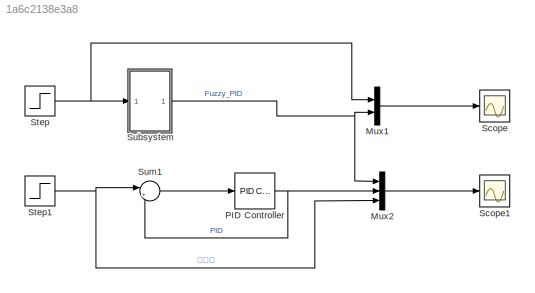
MODEL slx_1a6c2138e3a8
KIND model
CONFIG AbsTol = auto
CONFIG EnableMultiTasking = off
CONFIG FixedStep = auto
CONFIG MaxStep = auto
CONFIG MinStep = auto
CONFIG RelTol = 1e-3
CONFIG SampleTimeConstraint = Unconstrained
CONFIG Solver = VariableStepAuto
CONFIG SolverName = VariableStepAuto
CONFIG StartTime = 0.0
CONFIG StopTime = 1000
BLOCK [Mux] Mux1
  DisplayOption = bar
  Inputs = 2
  Ports = [2, 1]
BLOCK [Mux] Mux2
  DisplayOption = bar
  Inputs = 3
  Ports = [3, 1]
BLOCK [Reference] PID Controller  REF=simulink/Continuous/PID Controller
  Ports = [1, 1]
  SourceBlock = simulink/Continuous/PID Controller
  SourceProductBaseCode = SL
  SourceProductName = Simulink
  SourceType = PID 1dof
BLOCK [Scope] Scope
  Floating = off
  NumInputPorts = 1
  Ports = [1]
  ScopeSpecificationString = Simulink.scopes.TimeScopeBlockCfg('CurrentConfiguration', extmgr.ConfigurationSet(extmgr.Configuration('Core','General UI',true),extmgr.Configuration('Core','Source UI',true),extmgr.Configuration('Sources','WiredSimulink',true),extmgr.Configuration('Visuals','Time Domain',true,'SerializedDisplays',{struct('MinYLimReal','-137.5','MaxYLimReal','137.5','YLabelReal','','MinYLimMag',' 0.00000','MaxYLim...<+1365ch>
BLOCK [Scope] Scope1
  Floating = off
  NumInputPorts = 1
  Ports = [1]
  ScopeSpecificationString = Simulink.scopes.TimeScopeBlockCfg('CurrentConfiguration', extmgr.ConfigurationSet(extmgr.Configuration('Core','General UI',true),extmgr.Configuration('Core','Source UI',true),extmgr.Configuration('Sources','WiredSimulink',true,'DataLoggingVariableName','ScopeData1'),extmgr.Configuration('Visuals','Time Domain',true,'SerializedDisplays',{struct('MinYLimReal','-10.14515','MaxYLimReal','123.34946','Y...<+1434ch>
BLOCK [Step] Step
  After = 110
  SampleTime = 0
  Time = 0
BLOCK [Step] Step1
  After = 110
  SampleTime = 0
  Time = 0
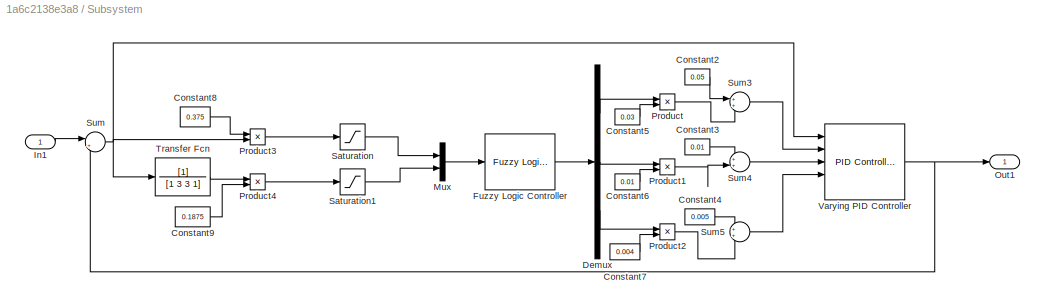
BLOCK [SubSystem] Subsystem
  Ports = [1, 1]
  RequestExecContextInheritance = off
BLOCK [Constant] Subsystem/Constant2
  Value = 0.05
BLOCK [Constant] Subsystem/Constant3
  Value = 0.01
BLOCK [Constant] Subsystem/Constant4
  Value = 0.005
BLOCK [Constant] Subsystem/Constant5
  Value = 0.03
BLOCK [Constant] Subsystem/Constant6
  Value = 0.01
BLOCK [Constant] Subsystem/Constant7
  Value = 0.004
BLOCK [Constant] Subsystem/Constant8
  Value = 0.375
BLOCK [Constant] Subsystem/Constant9
  Value = 0.1875
BLOCK [Demux] Subsystem/Demux
  DisplayOption = bar
  Outputs = 3
  Ports = [1, 3]
BLOCK [Reference] Subsystem/Fuzzy Logic Controller  REF=fuzblock/Fuzzy Logic   (lib defined in mdl_858b3b3e7478)
Controller
  Ports = [1, 1]
  SourceBlock = fuzblock/Fuzzy Logic \nController
  SourceProductBaseCode = FL
  SourceProductName = Fuzzy Logic Toolbox
  SourceType = Fuzzy Inference System
BLOCK [Inport] Subsystem/In1
  IconDisplay = Port number
BLOCK [Mux] Subsystem/Mux
  DisplayOption = bar
  Inputs = 2
  Ports = [2, 1]
BLOCK [Outport] Subsystem/Out1
  IconDisplay = Port number
BLOCK [Product] Subsystem/Product
  InputSameDT = off
  OutDataTypeStr = Inherit: Inherit via internal rule
  Ports = [2, 1]
  RndMeth = Floor
  SaturateOnIntegerOverflow = off
BLOCK [Product] Subsystem/Product1
  InputSameDT = off
  OutDataTypeStr = Inherit: Inherit via internal rule
  Ports = [2, 1]
  RndMeth = Floor
  SaturateOnIntegerOverflow = off
BLOCK [Product] Subsystem/Product2
  InputSameDT = off
  OutDataTypeStr = Inherit: Inherit via internal rule
  Ports = [2, 1]
  RndMeth = Floor
  SaturateOnIntegerOverflow = off
BLOCK [Product] Subsystem/Product3
  InputSameDT = off
  OutDataTypeStr = Inherit: Inherit via internal rule
  Ports = [2, 1]
  RndMeth = Floor
  SaturateOnIntegerOverflow = off
BLOCK [Product] Subsystem/Product4
  InputSameDT = off
  OutDataTypeStr = Inherit: Inherit via internal rule
  Ports = [2, 1]
  RndMeth = Floor
  SaturateOnIntegerOverflow = off
BLOCK [Saturate] Subsystem/Saturation
  InputPortMap = u0
  LowerLimit = -3
  Ports = [1, 1]
  UpperLimit = 3
BLOCK [Saturate] Subsystem/Saturation1
  InputPortMap = u0
  LowerLimit = -3
  Ports = [1, 1]
  UpperLimit = 3
BLOCK [Sum] Subsystem/Sum
  IconShape = round
  InputSameDT = off
  Inputs = |+-
  OutDataTypeStr = Inherit: Inherit via internal rule
  Ports = [2, 1]
  SaturateOnIntegerOverflow = off
BLOCK [Sum] Subsystem/Sum3
  IconShape = round
  InputSameDT = off
  OutDataTypeStr = Inherit: Inherit via internal rule
  Ports = [2, 1]
  SaturateOnIntegerOverflow = off
BLOCK [Sum] Subsystem/Sum4
  IconShape = round
  InputSameDT = off
  OutDataTypeStr = Inherit: Inherit via internal rule
  Ports = [2, 1]
  SaturateOnIntegerOverflow = off
BLOCK [Sum] Subsystem/Sum5
  IconShape = round
  InputSameDT = off
  OutDataTypeStr = Inherit: Inherit via internal rule
  Ports = [2, 1]
  SaturateOnIntegerOverflow = off
BLOCK [TransferFcn] Subsystem/Transfer Fcn
  Denominator = [1 3 3 1]
BLOCK [Reference] Subsystem/Varying PID Controller  REF=simulink/Continuous/PID Controller
  Ports = [5, 1]
  SourceBlock = simulink/Continuous/PID Controller
  SourceProductBaseCode = SL
  SourceProductName = Simulink
  SourceType = PID 1dof
BLOCK [Sum] Sum1
  IconShape = round
  InputSameDT = off
  Inputs = |+-
  OutDataTypeStr = Inherit: Inherit via internal rule
  Ports = [2, 1]
  SaturateOnIntegerOverflow = off
LINE Mux1:1 -> Scope:1
LINE Mux2:1 -> Scope1:1
NET PID Controller:1 -> Mux2:2, Sum1:2
NET Step1:1 -> Mux2:3, Sum1:1
NET Step:1 -> Mux1:1, Subsystem:1
LINE Subsystem/Constant2:1 -> Subsystem/Sum3:1
LINE Subsystem/Constant3:1 -> Subsystem/Sum4:1
LINE Subsystem/Constant4:1 -> Subsystem/Sum5:1
LINE Subsystem/Constant5:1 -> Subsystem/Product:2
LINE Subsystem/Constant6:1 -> Subsystem/Product1:2
LINE Subsystem/Constant7:1 -> Subsystem/Product2:2
LINE Subsystem/Constant8:1 -> Subsystem/Product3:1
LINE Subsystem/Constant9:1 -> Subsystem/Product4:2
LINE Subsystem/Demux:1 -> Subsystem/Product:1
LINE Subsystem/Demux:2 -> Subsystem/Product1:1
LINE Subsystem/Demux:3 -> Subsystem/Product2:1
LINE Subsystem/Fuzzy Logic Controller:1 -> Subsystem/Demux:1
LINE Subsystem/In1:1 -> Subsystem/Sum:1
LINE Subsystem/Mux:1 -> Subsystem/Fuzzy Logic Controller:1
LINE Subsystem/Product1:1 -> Subsystem/Sum4:2
LINE Subsystem/Product2:1 -> Subsystem/Sum5:2
LINE Subsystem/Product3:1 -> Subsystem/Saturation:1
LINE Subsystem/Product4:1 -> Subsystem/Saturation1:1
LINE Subsystem/Product:1 -> Subsystem/Sum3:2
LINE Subsystem/Saturation1:1 -> Subsystem/Mux:2
LINE Subsystem/Saturation:1 -> Subsystem/Mux:1
LINE Subsystem/Sum3:1 -> Subsystem/Varying PID Controller:2
LINE Subsystem/Sum4:1 -> Subsystem/Varying PID Controller:3
LINE Subsystem/Sum5:1 -> Subsystem/Varying PID Controller:4
NET Subsystem/Sum:1 -> Subsystem/Product3:2, Subsystem/Transfer Fcn:1, Subsystem/Varying PID Controller:1
LINE Subsystem/Transfer Fcn:1 -> Subsystem/Product4:1
NET Subsystem/Varying PID Controller:1 -> Subsystem/Out1:1, Subsystem/Sum:2
NET Subsystem:1 -> Mux1:2, Mux2:1
LINE Sum1:1 -> PID Controller:1
note: NET lines group one-source signal fan-out (src -> all destinations, sorted); 1:1 wires keep LINE
